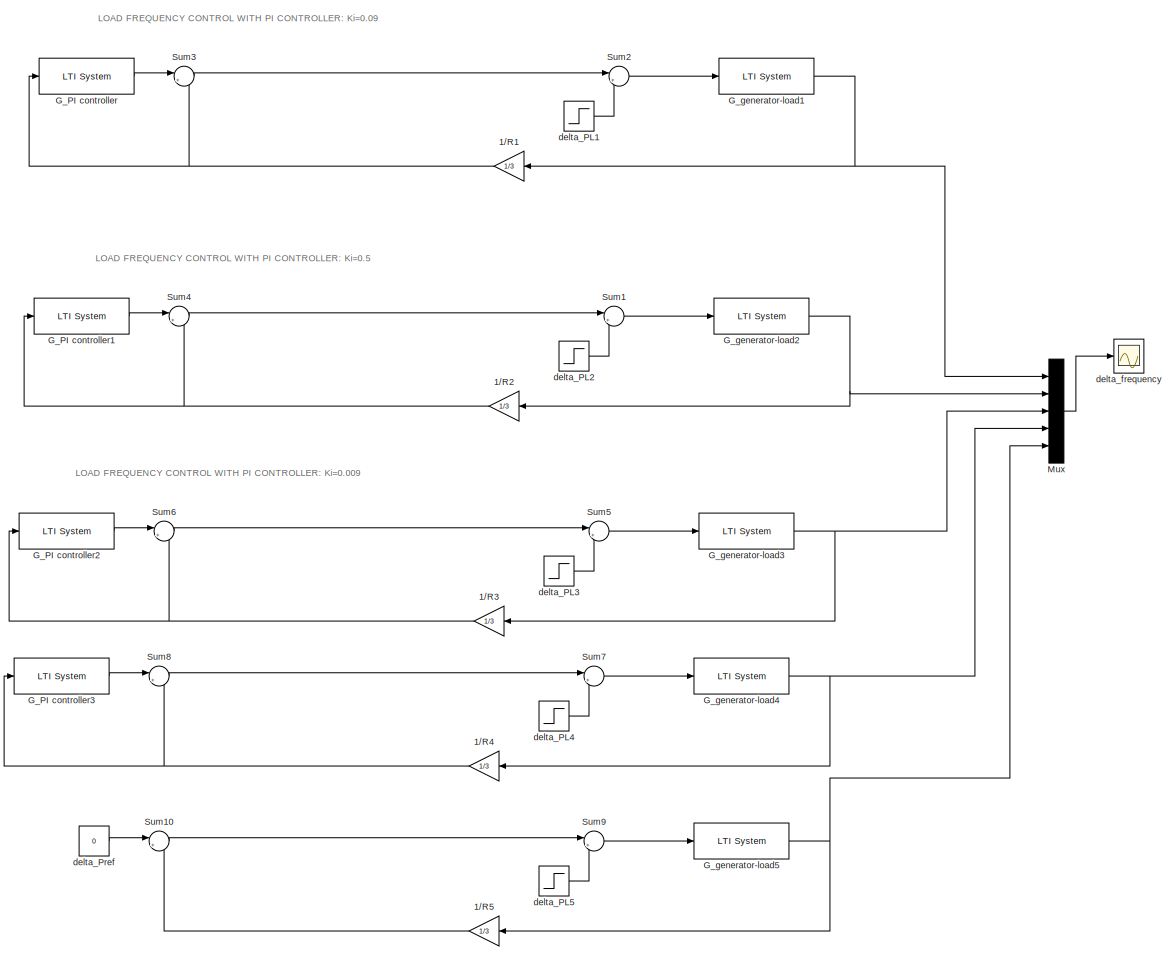
[diagram: root canvas - part 1/1, most of the canvas]
MODEL slx_4772de2b1afd
KIND model
BLOCK [Gain] 1//R1
  Gain = 1/3
  OutDataTypeStr = Inherit: Inherit via internal rule
  ParamDataTypeStr = Inherit: Inherit via internal rule
  SaturateOnIntegerOverflow = off
BLOCK [Gain] 1//R2
  Gain = 1/3
  OutDataTypeStr = Inherit: Inherit via internal rule
  ParamDataTypeStr = Inherit: Inherit via internal rule
  SaturateOnIntegerOverflow = off
BLOCK [Gain] 1//R3
  Gain = 1/3
  OutDataTypeStr = Inherit: Inherit via internal rule
  ParamDataTypeStr = Inherit: Inherit via internal rule
  SaturateOnIntegerOverflow = off
BLOCK [Gain] 1//R4
  Gain = 1/3
  OutDataTypeStr = Inherit: Inherit via internal rule
  ParamDataTypeStr = Inherit: Inherit via internal rule
  SaturateOnIntegerOverflow = off
BLOCK [Gain] 1//R5
  Gain = 1/3
  OutDataTypeStr = Inherit: Inherit via internal rule
  ParamDataTypeStr = Inherit: Inherit via internal rule
  SaturateOnIntegerOverflow = off
BLOCK [Reference] G_PI controller  REF=cstblocks/LTI System
  IC = []
  Ports = [1, 1]
  SourceBlock = cstblocks/LTI System
  SourceType = LTI Block
  sys = tf(-0.09,[1 0])
BLOCK [Reference] G_PI controller1  REF=cstblocks/LTI System
  IC = []
  Ports = [1, 1]
  SourceBlock = cstblocks/LTI System
  SourceType = LTI Block
  sys = tf(-0.5,[1 0])
BLOCK [Reference] G_PI controller2  REF=cstblocks/LTI System
  IC = []
  Ports = [1, 1]
  SourceBlock = cstblocks/LTI System
  SourceType = LTI Block
  sys = tf(-0.009,[1 0])
BLOCK [Reference] G_PI controller3  REF=cstblocks/LTI System
  IC = []
  Ports = [1, 1]
  SourceBlock = cstblocks/LTI System
  SourceType = LTI Block
  sys = tf(-3,[1 0])
BLOCK [Reference] G_generator-load1  REF=cstblocks/LTI System
  IC = []
  Ports = [1, 1]
  SourceBlock = cstblocks/LTI System
  SourceType = LTI Block
  sys = tf(100,[20 1])
BLOCK [Reference] G_generator-load2  REF=cstblocks/LTI System
  IC = []
  Ports = [1, 1]
  SourceBlock = cstblocks/LTI System
  SourceType = LTI Block
  sys = tf(100,[20 1])
BLOCK [Reference] G_generator-load3  REF=cstblocks/LTI System
  IC = []
  Ports = [1, 1]
  SourceBlock = cstblocks/LTI System
  SourceType = LTI Block
  sys = tf(100,[20 1])
BLOCK [Reference] G_generator-load4  REF=cstblocks/LTI System
  IC = []
  Ports = [1, 1]
  SourceBlock = cstblocks/LTI System
  SourceType = LTI Block
  sys = tf(100,[20 1])
BLOCK [Reference] G_generator-load5  REF=cstblocks/LTI System
  IC = []
  Ports = [1, 1]
  SourceBlock = cstblocks/LTI System
  SourceType = LTI Block
  sys = tf(100,[20 1])
BLOCK [Mux] Mux
  DisplayOption = bar
  Inputs = 5
  Ports = [5, 1]
BLOCK [Sum] Sum1
  IconShape = round
  InputSameDT = off
  Inputs = |+-
  OutDataTypeStr = Inherit: Inherit via internal rule
  Ports = [2, 1]
  SaturateOnIntegerOverflow = off
BLOCK [Sum] Sum10
  IconShape = round
  InputSameDT = off
  Inputs = |+-
  OutDataTypeStr = Inherit: Inherit via internal rule
  Ports = [2, 1]
  SaturateOnIntegerOverflow = off
BLOCK [Sum] Sum2
  IconShape = round
  InputSameDT = off
  Inputs = |+-
  OutDataTypeStr = Inherit: Inherit via internal rule
  Ports = [2, 1]
  SaturateOnIntegerOverflow = off
BLOCK [Sum] Sum3
  IconShape = round
  InputSameDT = off
  Inputs = |+-
  OutDataTypeStr = Inherit: Inherit via internal rule
  Ports = [2, 1]
  SaturateOnIntegerOverflow = off
BLOCK [Sum] Sum4
  IconShape = round
  InputSameDT = off
  Inputs = |+-
  OutDataTypeStr = Inherit: Inherit via internal rule
  Ports = [2, 1]
  SaturateOnIntegerOverflow = off
BLOCK [Sum] Sum5
  IconShape = round
  InputSameDT = off
  Inputs = |+-
  OutDataTypeStr = Inherit: Inherit via internal rule
  Ports = [2, 1]
  SaturateOnIntegerOverflow = off
BLOCK [Sum] Sum6
  IconShape = round
  InputSameDT = off
  Inputs = |+-
  OutDataTypeStr = Inherit: Inherit via internal rule
  Ports = [2, 1]
  SaturateOnIntegerOverflow = off
BLOCK [Sum] Sum7
  IconShape = round
  InputSameDT = off
  Inputs = |+-
  OutDataTypeStr = Inherit: Inherit via internal rule
  Ports = [2, 1]
  SaturateOnIntegerOverflow = off
BLOCK [Sum] Sum8
  IconShape = round
  InputSameDT = off
  Inputs = |+-
  OutDataTypeStr = Inherit: Inherit via internal rule
  Ports = [2, 1]
  SaturateOnIntegerOverflow = off
BLOCK [Sum] Sum9
  IconShape = round
  InputSameDT = off
  Inputs = |+-
  OutDataTypeStr = Inherit: Inherit via internal rule
  Ports = [2, 1]
  SaturateOnIntegerOverflow = off
BLOCK [Step] delta_PL1
  After = 0.01
  SampleTime = 0
BLOCK [Step] delta_PL2
  After = 0.01
  SampleTime = 0
BLOCK [Step] delta_PL3
  After = 0.01
  SampleTime = 0
BLOCK [Step] delta_PL4
  After = 0.01
  SampleTime = 0
BLOCK [Step] delta_PL5
  After = 0.01
  SampleTime = 0
BLOCK [Constant] delta_Pref
  Value = 0
BLOCK [Scope] delta_frequency
  Floating = off
  NumInputPorts = 1
  Ports = [1]
  ShowLegends = off
  YMax = 0.03
  YMin = -0.05
ANNOTATION (root): LOAD FREQUENCY CONTROL WITH PI CONTROLLER: Ki=0.009
ANNOTATION (root): LOAD FREQUENCY CONTROL WITH PI CONTROLLER: Ki=0.09
ANNOTATION (root): LOAD FREQUENCY CONTROL WITH PI CONTROLLER: Ki=0.5
NET 1//R1:1 -> G_PI controller:1, Sum3:2
NET 1//R2:1 -> G_PI controller1:1, Sum4:2
NET 1//R3:1 -> G_PI controller2:1, Sum6:2
NET 1//R4:1 -> G_PI controller3:1, Sum8:2
LINE 1//R5:1 -> Sum10:2
LINE G_PI controller1:1 -> Sum4:1
LINE G_PI controller2:1 -> Sum6:1
LINE G_PI controller3:1 -> Sum8:1
LINE G_PI controller:1 -> Sum3:1
NET G_generator-load1:1 -> 1//R1:1, Mux:1
NET G_generator-load2:1 -> 1//R2:1, Mux:2
NET G_generator-load3:1 -> 1//R3:1, Mux:3
NET G_generator-load4:1 -> 1//R4:1, Mux:4
NET G_generator-load5:1 -> 1//R5:1, Mux:5
LINE Mux:1 -> delta_frequency:1
LINE Sum10:1 -> Sum9:1
LINE Sum1:1 -> G_generator-load2:1
LINE Sum2:1 -> G_generator-load1:1
LINE Sum3:1 -> Sum2:1
LINE Sum4:1 -> Sum1:1
LINE Sum5:1 -> G_generator-load3:1
LINE Sum6:1 -> Sum5:1
LINE Sum7:1 -> G_generator-load4:1
LINE Sum8:1 -> Sum7:1
LINE Sum9:1 -> G_generator-load5:1
LINE delta_PL1:1 -> Sum2:2
LINE delta_PL2:1 -> Sum1:2
LINE delta_PL3:1 -> Sum5:2
LINE delta_PL4:1 -> Sum7:2
LINE delta_PL5:1 -> Sum9:2
LINE delta_Pref:1 -> Sum10:1
note: NET lines group one-source signal fan-out (src -> all destinations, sorted); 1:1 wires keep LINE
